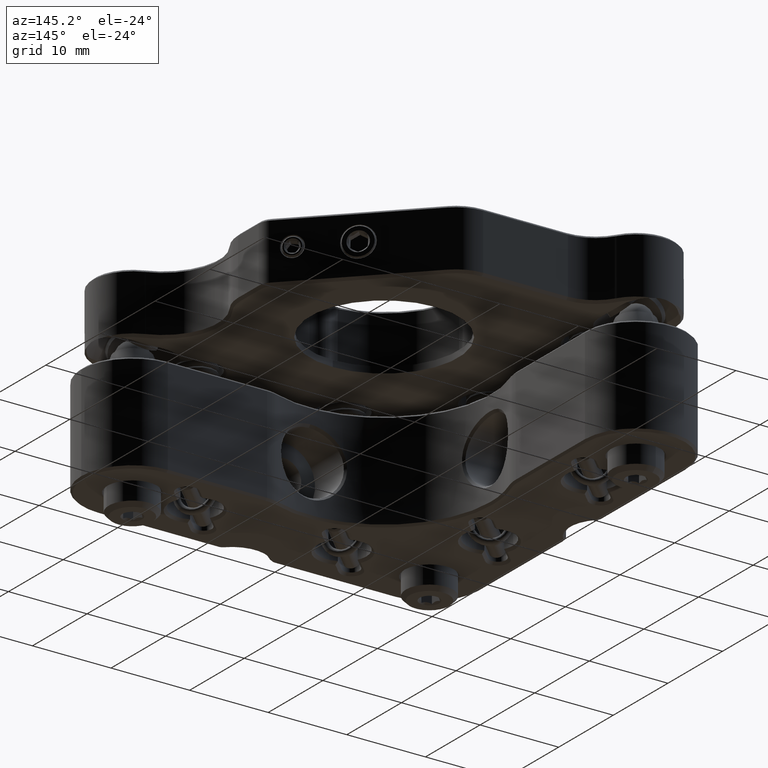
[diagram: clean part render]
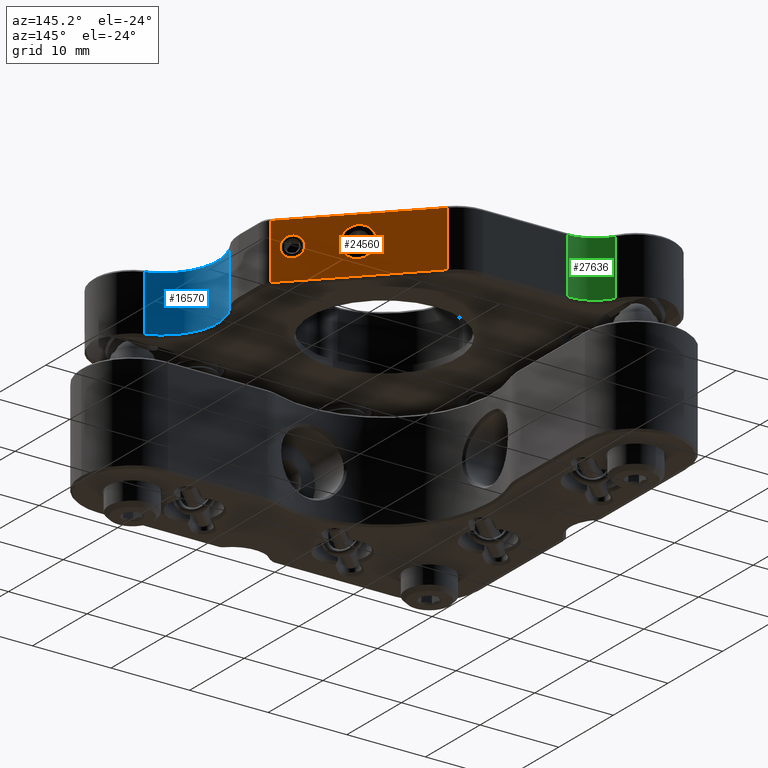
[diagram: same view with three faces highlighted in distinct colors, each labeled with its STEP entity id]
A machine part, auxiliary view with three faces highlighted in distinct colors.
Their STEP definitions:

[orange] entity #24560 — the highlighted planar face has unit normal (-0.7071, -0.7071, 0).
#181 = CARTESIAN_POINT ( 'NONE',  ( -45.39604614807099381, 23.89999999999999858, -3.549999999999998490 ) ) ;
#572 = CIRCLE ( 'NONE', #23994, 1.325000000000006173 ) ;
#1175 = DIRECTION ( 'NONE',  ( 0.7071067811865475727, 0.7071067811865475727, 0.000000000000000000 ) ) ;
#1401 = LINE ( 'NONE', #181, #15021 ) ;
#1428 = EDGE_LOOP ( 'NONE', ( #24791, #15436, #8191, #24178 ) ) ;
#1593 = DIRECTION ( 'NONE',  ( 0.7071067811865475727, -0.7071067811865475727, -0.000000000000000000 ) ) ;
#1736 = FACE_BOUND ( 'NONE', #2059, .T. ) ;
#1764 = DIRECTION ( 'NONE',  ( 0.000000000000000000, 0.000000000000000000, 1.000000000000000000 ) ) ;
#2015 = VERTEX_POINT ( 'NONE', #25129 ) ;
#2059 = EDGE_LOOP ( 'NONE', ( #23030, #16491 ) ) ;
#3087 = CARTESIAN_POINT ( 'NONE',  ( -65.23553390593271217, 4.060512242138276662, -3.549999999999998490 ) ) ;
#3770 = CARTESIAN_POINT ( 'NONE',  ( -51.98183258569790155, 17.31421356237309794, -3.850000000000000089 ) ) ;
#3859 = CIRCLE ( 'NONE', #27738, 1.949999999999987965 ) ;
#4699 = VERTEX_POINT ( 'NONE', #8153 ) ;
#6028 = DIRECTION ( 'NONE',  ( 0.000000000000000000, 0.000000000000000000, -1.000000000000000000 ) ) ;
#7286 = EDGE_CURVE ( 'NONE', #25852, #14404, #23721, .T. ) ;
#7510 = CARTESIAN_POINT ( 'NONE',  ( -51.98183258569790155, 17.31421356237309794, -3.549999999999998490 ) ) ;
#8153 = CARTESIAN_POINT ( 'NONE',  ( -57.16916485072172804, 12.12688129734926257, 0.3999999999999990785 ) ) ;
#8178 = EDGE_CURVE ( 'NONE', #25852, #24614, #19129, .T. ) ;
#8180 = DIRECTION ( 'NONE',  ( 0.7071067811865474617, 0.7071067811865474617, 0.000000000000000000 ) ) ;
#8191 = ORIENTED_EDGE ( 'NONE', *, *, #7286, .F. ) ;
#8637 = EDGE_CURVE ( 'NONE', #10545, #2015, #23227, .T. ) ;
#9656 = DIRECTION ( 'NONE',  ( 0.7071067811865475727, -0.7071067811865475727, -0.000000000000000000 ) ) ;
#9919 = EDGE_CURVE ( 'NONE', #21936, #4699, #3859, .T. ) ;
#9921 = EDGE_CURVE ( 'NONE', #4699, #21936, #20393, .T. ) ;
#10337 = EDGE_LOOP ( 'NONE', ( #17216, #17363 ) ) ;
#10489 = CARTESIAN_POINT ( 'NONE',  ( -51.98183258569790155, 17.31421356237309439, 3.550000000000012257 ) ) ;
#10545 = VERTEX_POINT ( 'NONE', #26734 ) ;
#10592 = DIRECTION ( 'NONE',  ( 0.7071067811865475727, -0.7071067811865475727, -0.000000000000000000 ) ) ;
#11969 = DIRECTION ( 'NONE',  ( 0.7071067811865480168, 0.7071067811865471286, 0.000000000000000000 ) ) ;
#12252 = DIRECTION ( 'NONE',  ( 0.7071067811865480168, 0.7071067811865471286, 0.000000000000000000 ) ) ;
#13149 = DIRECTION ( 'NONE',  ( -0.7071067811865474617, -0.7071067811865474617, 0.000000000000000000 ) ) ;
#14264 = CARTESIAN_POINT ( 'NONE',  ( -58.54802307403549122, 10.74802307403550294, 0.3999999999999988565 ) ) ;
#14404 = VERTEX_POINT ( 'NONE', #3087 ) ;
#14649 = EDGE_CURVE ( 'NONE', #22685, #24614, #21470, .T. ) ;
#14906 = CARTESIAN_POINT ( 'NONE',  ( -65.23553390593271217, 4.060512242138276662, 3.550000000000011369 ) ) ;
#15021 = VECTOR ( 'NONE', #13149, 1000.000000000000114 ) ;
#15337 = AXIS2_PLACEMENT_3D ( 'NONE', #27343, #9656, #11969 ) ;
#15403 = AXIS2_PLACEMENT_3D ( 'NONE', #28141, #10592, #19366 ) ;
#15436 = ORIENTED_EDGE ( 'NONE', *, *, #23530, .T. ) ;
#16491 = ORIENTED_EDGE ( 'NONE', *, *, #8637, .T. ) ;
#16556 = CARTESIAN_POINT ( 'NONE',  ( -53.59827560572965410, 15.69777054234133828, 0.3999999999999988565 ) ) ;
#16612 = VECTOR ( 'NONE', #6028, 1000.000000000000000 ) ;
#17216 = ORIENTED_EDGE ( 'NONE', *, *, #9919, .T. ) ;
#17363 = ORIENTED_EDGE ( 'NONE', *, *, #9921, .T. ) ;
#18444 = DIRECTION ( 'NONE',  ( 0.7071067811865475727, -0.7071067811865475727, -0.000000000000000000 ) ) ;
#18997 = CARTESIAN_POINT ( 'NONE',  ( -51.98183258569790155, 17.31421356237309794, 3.550000000000012257 ) ) ;
#19129 = LINE ( 'NONE', #10489, #24598 ) ;
#19366 = DIRECTION ( 'NONE',  ( 0.7071067811865475727, 0.7071067811865475727, 0.000000000000000000 ) ) ;
#20393 = CIRCLE ( 'NONE', #15337, 1.949999999999987965 ) ;
#20730 = CARTESIAN_POINT ( 'NONE',  ( -59.92688129734924019, 9.369164850721746873, 0.3999999999999988565 ) ) ;
#21274 = CARTESIAN_POINT ( 'NONE',  ( -65.23553390593271217, 4.060512242138276662, -3.850000000000000089 ) ) ;
#21291 = CARTESIAN_POINT ( 'NONE',  ( -45.39604614807099381, 23.89999999999999858, -3.850000000000000089 ) ) ;
#21470 = LINE ( 'NONE', #3770, #22346 ) ;
#21578 = FACE_BOUND ( 'NONE', #10337, .T. ) ;
#21936 = VERTEX_POINT ( 'NONE', #20730 ) ;
#22346 = VECTOR ( 'NONE', #1764, 1000.000000000000000 ) ;
#22656 = AXIS2_PLACEMENT_3D ( 'NONE', #21291, #1593, #28193 ) ;
#22685 = VERTEX_POINT ( 'NONE', #7510 ) ;
#23030 = ORIENTED_EDGE ( 'NONE', *, *, #24395, .T. ) ;
#23163 = DIRECTION ( 'NONE',  ( 0.7071067811865475727, -0.7071067811865475727, -0.000000000000000000 ) ) ;
#23227 = CIRCLE ( 'NONE', #15403, 1.325000000000006173 ) ;
#23530 = EDGE_CURVE ( 'NONE', #22685, #14404, #1401, .T. ) ;
#23721 = LINE ( 'NONE', #21274, #16612 ) ;
#23739 = PLANE ( 'NONE',  #22656 ) ;
#23994 = AXIS2_PLACEMENT_3D ( 'NONE', #16556, #18444, #1175 ) ;
#24178 = ORIENTED_EDGE ( 'NONE', *, *, #8178, .T. ) ;
#24395 = EDGE_CURVE ( 'NONE', #2015, #10545, #572, .T. ) ;
#24560 = ADVANCED_FACE ( 'NONE', ( #1736, #21578, #28052 ), #23739, .F. ) ;
#24598 = VECTOR ( 'NONE', #8180, 1000.000000000000114 ) ;
#24614 = VERTEX_POINT ( 'NONE', #18997 ) ;
#24791 = ORIENTED_EDGE ( 'NONE', *, *, #14649, .F. ) ;
#25129 = CARTESIAN_POINT ( 'NONE',  ( -54.53519209080180730, 14.76085405726918687, 0.3999999999999988565 ) ) ;
#25852 = VERTEX_POINT ( 'NONE', #14906 ) ;
#26734 = CARTESIAN_POINT ( 'NONE',  ( -52.66135912065747249, 16.63468702741351635, 0.3999999999999990230 ) ) ;
#27343 = CARTESIAN_POINT ( 'NONE',  ( -58.54802307403549122, 10.74802307403550294, 0.3999999999999988565 ) ) ;
#27738 = AXIS2_PLACEMENT_3D ( 'NONE', #14264, #23163, #12252 ) ;
#28052 = FACE_OUTER_BOUND ( 'NONE', #1428, .T. ) ;
#28141 = CARTESIAN_POINT ( 'NONE',  ( -53.59827560572965410, 15.69777054234133828, 0.3999999999999988565 ) ) ;
#28193 = DIRECTION ( 'NONE',  ( -0.7071067811865474617, -0.7071067811865474617, 0.000000000000000000 ) ) ;

[blue] entity #16570 — the highlighted cylindrical surface (partial cylindrical patch) has radius 7 mm, axis along (0, 0, 1).
#784 = VECTOR ( 'NONE', #5203, 1000.000000000000000 ) ;
#1150 = ORIENTED_EDGE ( 'NONE', *, *, #12591, .T. ) ;
#3109 = CARTESIAN_POINT ( 'NONE',  ( -33.61404520791030848, 20.56666666666666288, 3.550000000000009592 ) ) ;
#3642 = VERTEX_POINT ( 'NONE', #23598 ) ;
#4026 = CARTESIAN_POINT ( 'NONE',  ( -40.21370849898475086, 22.89999999999999503, -3.549999999999998490 ) ) ;
#4030 = CYLINDRICAL_SURFACE ( 'NONE', #13697, 6.999999999999999112 ) ;
#4580 = CARTESIAN_POINT ( 'NONE',  ( -44.08310408773272115, 17.06666666666666288, -3.549999999999998490 ) ) ;
#5203 = DIRECTION ( 'NONE',  ( 0.000000000000000000, 0.000000000000000000, 1.000000000000000000 ) ) ;
#6241 = EDGE_CURVE ( 'NONE', #3642, #19648, #15223, .T. ) ;
#6651 = VERTEX_POINT ( 'NONE', #3109 ) ;
#6745 = ORIENTED_EDGE ( 'NONE', *, *, #16091, .F. ) ;
#7123 = CARTESIAN_POINT ( 'NONE',  ( -44.08310408773272115, 17.06666666666666288, -3.850000000000000089 ) ) ;
#8446 = ORIENTED_EDGE ( 'NONE', *, *, #18890, .T. ) ;
#8623 = FACE_OUTER_BOUND ( 'NONE', #17924, .T. ) ;
#9050 = DIRECTION ( 'NONE',  ( -1.000000000000000000, 0.000000000000000000, 0.000000000000000000 ) ) ;
#9664 = CARTESIAN_POINT ( 'NONE',  ( -33.61404520791030848, 20.56666666666666288, -3.549999999999998490 ) ) ;
#9899 = CIRCLE ( 'NONE', #20927, 6.999999999999999112 ) ;
#10163 = ORIENTED_EDGE ( 'NONE', *, *, #6241, .F. ) ;
#12591 = EDGE_CURVE ( 'NONE', #21947, #19648, #16804, .T. ) ;
#13567 = LINE ( 'NONE', #26774, #784 ) ;
#13697 = AXIS2_PLACEMENT_3D ( 'NONE', #23880, #17685, #9050 ) ;
#15223 = LINE ( 'NONE', #7123, #20025 ) ;
#16091 = EDGE_CURVE ( 'NONE', #21947, #6651, #13567, .T. ) ;
#16570 = ADVANCED_FACE ( 'NONE', ( #8623 ), #4030, .F. ) ;
#16804 = CIRCLE ( 'NONE', #19542, 6.999999999999999112 ) ;
#17101 = DIRECTION ( 'NONE',  ( -0.000000000000000000, -0.000000000000000000, -1.000000000000000000 ) ) ;
#17685 = DIRECTION ( 'NONE',  ( 0.000000000000000000, 0.000000000000000000, 1.000000000000000000 ) ) ;
#17924 = EDGE_LOOP ( 'NONE', ( #6745, #1150, #10163, #8446 ) ) ;
#18890 = EDGE_CURVE ( 'NONE', #3642, #6651, #9899, .T. ) ;
#19531 = DIRECTION ( 'NONE',  ( -0.000000000000000000, -0.000000000000000000, 1.000000000000000000 ) ) ;
#19542 = AXIS2_PLACEMENT_3D ( 'NONE', #4026, #21577, #28192 ) ;
#19648 = VERTEX_POINT ( 'NONE', #4580 ) ;
#20025 = VECTOR ( 'NONE', #17101, 1000.000000000000000 ) ;
#20927 = AXIS2_PLACEMENT_3D ( 'NONE', #23713, #19531, #21684 ) ;
#21577 = DIRECTION ( 'NONE',  ( 0.000000000000000000, 0.000000000000000000, -1.000000000000000000 ) ) ;
#21684 = DIRECTION ( 'NONE',  ( 1.000000000000000000, 0.000000000000000000, 0.000000000000000000 ) ) ;
#21947 = VERTEX_POINT ( 'NONE', #9664 ) ;
#23598 = CARTESIAN_POINT ( 'NONE',  ( -44.08310408773272115, 17.06666666666666288, 3.550000000000009592 ) ) ;
#23713 = CARTESIAN_POINT ( 'NONE',  ( -40.21370849898475086, 22.89999999999999503, 3.550000000000011369 ) ) ;
#23880 = CARTESIAN_POINT ( 'NONE',  ( -40.21370849898475086, 22.89999999999999503, -3.850000000000000089 ) ) ;
#26774 = CARTESIAN_POINT ( 'NONE',  ( -33.61404520791030848, 20.56666666666666288, -3.850000000000000089 ) ) ;
#28192 = DIRECTION ( 'NONE',  ( 1.000000000000000000, 0.000000000000000000, 0.000000000000000000 ) ) ;

[green] entity #27636 — the highlighted cylindrical surface (partial cylindrical patch) has radius 5 mm, axis along (0, 0, -1).
#756 = VERTEX_POINT ( 'NONE', #16174 ) ;
#804 = CARTESIAN_POINT ( 'NONE',  ( -71.69999999999998863, -10.23974596215560595, 3.850000000000000089 ) ) ;
#1110 = VECTOR ( 'NONE', #12849, 1000.000000000000000 ) ;
#1248 = DIRECTION ( 'NONE',  ( 0.000000000000000000, 0.000000000000000000, 1.000000000000000000 ) ) ;
#1890 = EDGE_CURVE ( 'NONE', #10058, #756, #19237, .T. ) ;
#2469 = LINE ( 'NONE', #20164, #26128 ) ;
#3224 = ORIENTED_EDGE ( 'NONE', *, *, #21691, .T. ) ;
#3350 = ORIENTED_EDGE ( 'NONE', *, *, #9478, .T. ) ;
#3366 = AXIS2_PLACEMENT_3D ( 'NONE', #804, #16335, #27263 ) ;
#3763 = VERTEX_POINT ( 'NONE', #20960 ) ;
#3857 = DIRECTION ( 'NONE',  ( 0.000000000000000000, 0.000000000000000000, -1.000000000000000000 ) ) ;
#5034 = EDGE_CURVE ( 'NONE', #21151, #3763, #7483, .T. ) ;
#6974 = FACE_OUTER_BOUND ( 'NONE', #23846, .T. ) ;
#7483 = CIRCLE ( 'NONE', #21698, 5.000000000000004441 ) ;
#8501 = LINE ( 'NONE', #14852, #1110 ) ;
#9478 = EDGE_CURVE ( 'NONE', #3763, #10058, #8501, .T. ) ;
#10058 = VERTEX_POINT ( 'NONE', #18577 ) ;
#11391 = DIRECTION ( 'NONE',  ( 0.000000000000000000, 0.000000000000000000, -1.000000000000000000 ) ) ;
#12750 = CARTESIAN_POINT ( 'NONE',  ( -66.69999999999998863, -10.23974596215560595, -3.549999999999998490 ) ) ;
#12849 = DIRECTION ( 'NONE',  ( -0.000000000000000000, -0.000000000000000000, 1.000000000000000000 ) ) ;
#14190 = CYLINDRICAL_SURFACE ( 'NONE', #3366, 5.000000000000004441 ) ;
#14482 = CARTESIAN_POINT ( 'NONE',  ( -71.69999999999998863, -10.23974596215560595, 3.550000000000011369 ) ) ;
#14852 = CARTESIAN_POINT ( 'NONE',  ( -69.19999999999998863, -14.56987298107780049, 3.850000000000000089 ) ) ;
#16174 = CARTESIAN_POINT ( 'NONE',  ( -66.69999999999998863, -10.23974596215560595, 3.550000000000011369 ) ) ;
#16335 = DIRECTION ( 'NONE',  ( 0.000000000000000000, 0.000000000000000000, -1.000000000000000000 ) ) ;
#18577 = CARTESIAN_POINT ( 'NONE',  ( -69.19999999999998863, -14.56987298107780049, 3.550000000000011369 ) ) ;
#19237 = CIRCLE ( 'NONE', #22650, 5.000000000000004441 ) ;
#20164 = CARTESIAN_POINT ( 'NONE',  ( -66.69999999999998863, -10.23974596215560595, -4.137924304864817771 ) ) ;
#20960 = CARTESIAN_POINT ( 'NONE',  ( -69.19999999999998863, -14.56987298107780049, -3.549999999999998490 ) ) ;
#21151 = VERTEX_POINT ( 'NONE', #12750 ) ;
#21691 = EDGE_CURVE ( 'NONE', #756, #21151, #2469, .T. ) ;
#21698 = AXIS2_PLACEMENT_3D ( 'NONE', #23564, #3857, #24277 ) ;
#22650 = AXIS2_PLACEMENT_3D ( 'NONE', #14482, #1248, #23245 ) ;
#23245 = DIRECTION ( 'NONE',  ( 1.000000000000000000, 0.000000000000000000, 0.000000000000000000 ) ) ;
#23564 = CARTESIAN_POINT ( 'NONE',  ( -71.69999999999998863, -10.23974596215560595, -3.549999999999998490 ) ) ;
#23750 = ORIENTED_EDGE ( 'NONE', *, *, #5034, .T. ) ;
#23846 = EDGE_LOOP ( 'NONE', ( #3224, #23750, #3350, #25193 ) ) ;
#24277 = DIRECTION ( 'NONE',  ( 1.000000000000000000, 0.000000000000000000, 0.000000000000000000 ) ) ;
#25193 = ORIENTED_EDGE ( 'NONE', *, *, #1890, .T. ) ;
#26128 = VECTOR ( 'NONE', #11391, 1000.000000000000000 ) ;
#27263 = DIRECTION ( 'NONE',  ( 1.000000000000000000, 0.000000000000000000, 0.000000000000000000 ) ) ;
#27636 = ADVANCED_FACE ( 'NONE', ( #6974 ), #14190, .F. ) ;